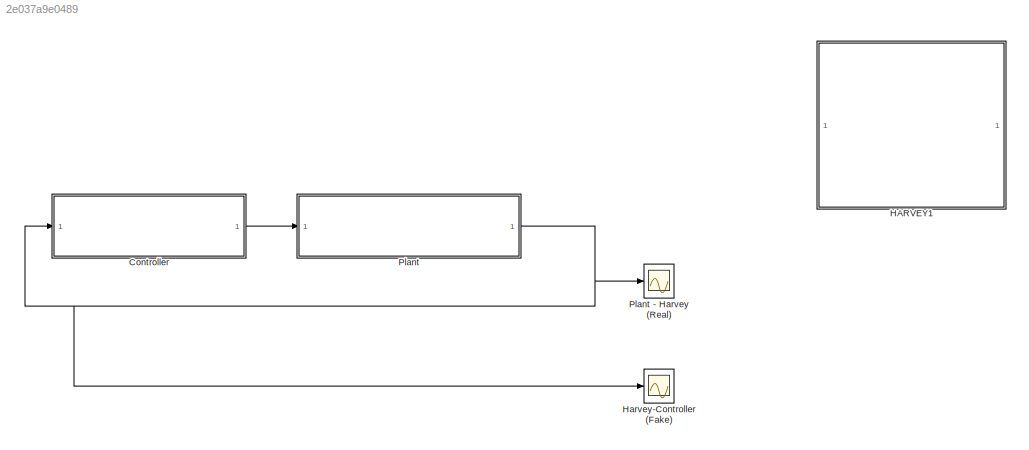
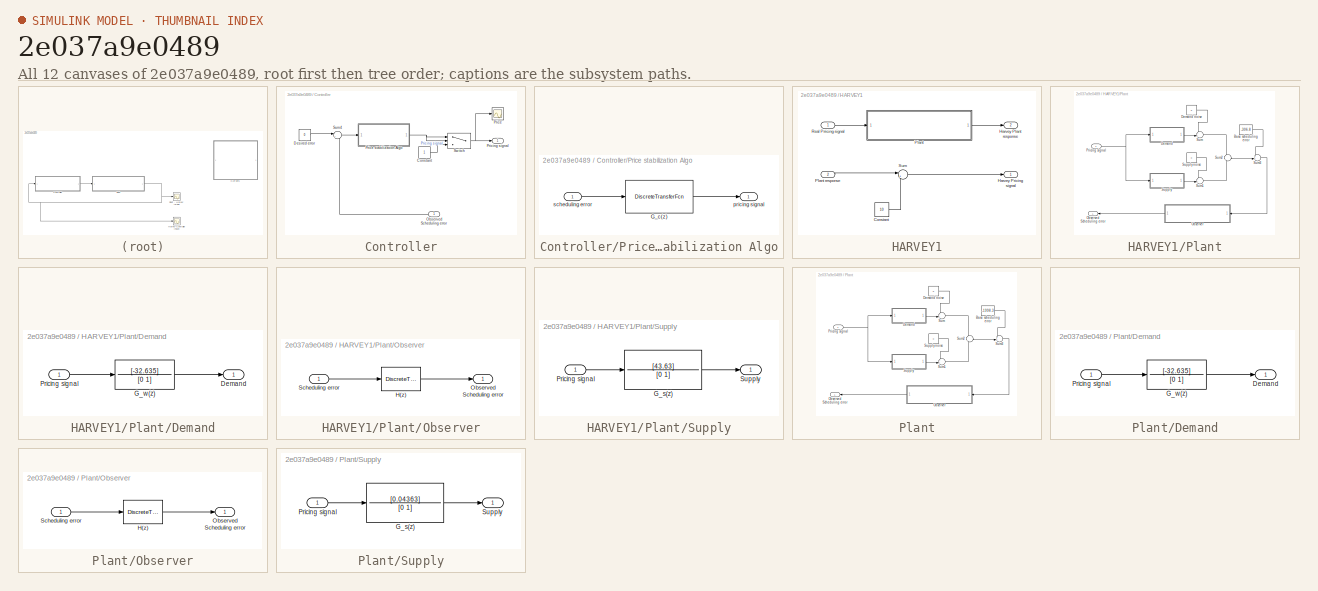
[diagram: thumbnail index - all 12 canvases of the model, root first then tree order]
MODEL slx_2e037a9e0489
KIND model
CONFIG AbsTol = auto
CONFIG EnableMultiTasking = off
CONFIG FixedStep = auto
CONFIG MaxStep = auto
CONFIG MinStep = auto
CONFIG RelTol = 1e-3
CONFIG SampleTimeConstraint = Unconstrained
CONFIG SolverName = VariableStepAuto
CONFIG StartTime = 0.0
CONFIG StopTime = 10
BLOCK [SubSystem] Controller
BLOCK [Constant] Controller/Constant
BLOCK [Constant] Controller/Desired error
  Value = 0
BLOCK [Inport] Controller/Observed Scheduling error
BLOCK [Scope] Controller/Price
  Floating = off
  NumInputPorts = 1
  ScopeSpecificationString = Simulink.scopes.TimeScopeBlockCfg('CurrentConfiguration', extmgr.ConfigurationSet(extmgr.Configuration('Core','General UI',true),extmgr.Configuration('Core','Source UI',true),extmgr.Configuration('Sources','WiredSimulink',true,'DataLoggingVariableName','ScopeData1'),extmgr.Configuration('Visuals','Time Domain',true,'SerializedDisplays',{struct('MinYLimReal','-6.51876','MaxYLimReal','68.66881','YLa...<+1697ch>
BLOCK [SubSystem] Controller/Price stabilization Algo
BLOCK [DiscreteTransferFcn] Controller/Price stabilization Algo/G_c(z)
  Denominator = [1 -1]
  InputPortMap = u0
  Numerator = [0.0245 0]
BLOCK [Outport] Controller/Price stabilization Algo/pricing signal
BLOCK [Inport] Controller/Price stabilization Algo/scheduling error
BLOCK [Outport] Controller/Pricing signal
BLOCK [Sum] Controller/Sum4
  Inputs = |+-
BLOCK [Switch] Controller/Switch
  Criteria = u2 > Threshold
  InputSameDT = off
  SaturateOnIntegerOverflow = off
  Threshold = 1
BLOCK [SubSystem] HARVEY1
  PortSchema = {"entries":[{"content":{"sides":[{"content":{"connectorIds":["In1","Out2"]},"type":"ConnectorPlacement.EquallySpacedRectSide","uuid":"463067e0-fab6-4de3-8785-e546c27fedfd"},{"content":{"connectorIds":["Out1","In2"],"side":"RIGHT"},"type":"ConnectorPlacement.EquallySpacedRectSide","uuid":"2f3028cb-c91f-413d-a400-7bf1e9b53c29"},{"content":{"connectorIds":[],"side":"TOP"},"type":"ConnectorPlacement.E...<+253ch>
BLOCK [Constant] HARVEY1/Constant
  Value = 10
BLOCK [Outport] HARVEY1/Harvey Plant response
  Port = 2
BLOCK [Outport] HARVEY1/Harvey Pricing signal
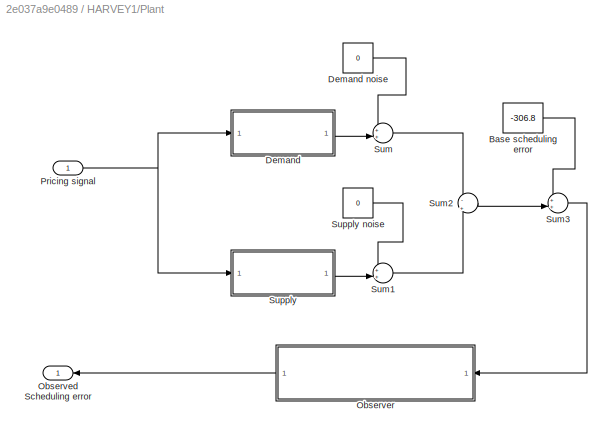
BLOCK [SubSystem] HARVEY1/Plant
BLOCK [Inport] HARVEY1/Plant response
  Port = 2
BLOCK [Constant] HARVEY1/Plant/Base scheduling error
  Value = -306.8
BLOCK [SubSystem] HARVEY1/Plant/Demand
BLOCK [Constant] HARVEY1/Plant/Demand noise
  Value = 0
BLOCK [Outport] HARVEY1/Plant/Demand/Demand
BLOCK [TransferFcn] HARVEY1/Plant/Demand/G_w(z)
  Denominator = [0 1]
  Numerator = [-32.635]
BLOCK [Inport] HARVEY1/Plant/Demand/Pricing signal
BLOCK [Outport] HARVEY1/Plant/Observed Scheduling error
BLOCK [SubSystem] HARVEY1/Plant/Observer
  NameLocation = top
BLOCK [DiscreteTransferFcn] HARVEY1/Plant/Observer/H(z)
  Denominator = [1 0]
  InputPortMap = u0
BLOCK [Outport] HARVEY1/Plant/Observer/Observed Scheduling error
BLOCK [Inport] HARVEY1/Plant/Observer/Scheduling error
BLOCK [Inport] HARVEY1/Plant/Pricing signal
BLOCK [Sum] HARVEY1/Plant/Sum
  Inputs = ++|
BLOCK [Sum] HARVEY1/Plant/Sum1
  Inputs = ++|
BLOCK [Sum] HARVEY1/Plant/Sum2
  Inputs = -|+
BLOCK [Sum] HARVEY1/Plant/Sum3
  Inputs = ++|
BLOCK [SubSystem] HARVEY1/Plant/Supply
BLOCK [Constant] HARVEY1/Plant/Supply noise
  Value = 0
BLOCK [TransferFcn] HARVEY1/Plant/Supply/G_s(z)
  Denominator = [0 1]
  Numerator = [43.63]
BLOCK [Inport] HARVEY1/Plant/Supply/Pricing signal
BLOCK [Outport] HARVEY1/Plant/Supply/Supply
BLOCK [Inport] HARVEY1/Real Prricing signal
BLOCK [Sum] HARVEY1/Sum
  Inputs = |++
BLOCK [Scope] Harvey-Controller (Fake)
  Floating = off
  NumInputPorts = 1
  ScopeSpecificationString = Simulink.scopes.TimeScopeBlockCfg('CurrentConfiguration', extmgr.ConfigurationSet(extmgr.Configuration('Core','General UI',true),extmgr.Configuration('Core','Source UI',true),extmgr.Configuration('Sources','WiredSimulink',true),extmgr.Configuration('Visuals','Time Domain',true,'SerializedDisplays',{struct('MinYLimReal','-2211.32404','MaxYLimReal','245.70267','YLabelReal','','MinYLimMag','  0.00000...<+1428ch>
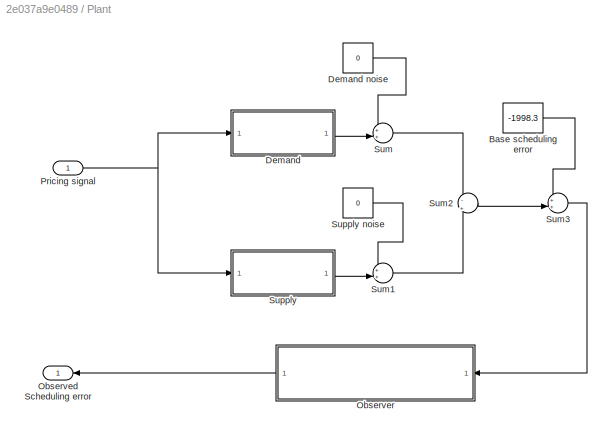
BLOCK [SubSystem] Plant
BLOCK [Scope] Plant - Harvey (Real)
  Floating = off
  NumInputPorts = 1
  ScopeSpecificationString = Simulink.scopes.TimeScopeBlockCfg('CurrentConfiguration', extmgr.ConfigurationSet(extmgr.Configuration('Core','General UI',true),extmgr.Configuration('Core','Source UI',true),extmgr.Configuration('Sources','WiredSimulink',true,'DataLoggingVariableName','ScopeData1'),extmgr.Configuration('Visuals','Time Domain',true,'SerializedDisplays',{struct('MinYLimReal','-2211.32404','MaxYLimReal','245.70267',...<+1466ch>
BLOCK [Constant] Plant/Base scheduling error
  Value = -1998.3
BLOCK [SubSystem] Plant/Demand
BLOCK [Constant] Plant/Demand noise
  Value = 0
BLOCK [Outport] Plant/Demand/Demand
BLOCK [TransferFcn] Plant/Demand/G_w(z)
  Denominator = [0 1]
  Numerator = [-32.635]
BLOCK [Inport] Plant/Demand/Pricing signal
BLOCK [Outport] Plant/Observed Scheduling error
BLOCK [SubSystem] Plant/Observer
  NameLocation = top
BLOCK [DiscreteTransferFcn] Plant/Observer/H(z)
  Denominator = [1 0]
  InputPortMap = u0
BLOCK [Outport] Plant/Observer/Observed Scheduling error
BLOCK [Inport] Plant/Observer/Scheduling error
BLOCK [Inport] Plant/Pricing signal
BLOCK [Sum] Plant/Sum
  Inputs = ++|
BLOCK [Sum] Plant/Sum1
  Inputs = ++|
BLOCK [Sum] Plant/Sum2
  Inputs = -|+
BLOCK [Sum] Plant/Sum3
  Inputs = ++|
BLOCK [SubSystem] Plant/Supply
BLOCK [Constant] Plant/Supply noise
  Value = 0
BLOCK [TransferFcn] Plant/Supply/G_s(z)
  Denominator = [0 1]
  Numerator = [0.04363]
BLOCK [Inport] Plant/Supply/Pricing signal
BLOCK [Outport] Plant/Supply/Supply
LINE Controller/Constant:1 -> Controller/Switch:3
LINE Controller/Desired error:1 -> Controller/Sum4:1
LINE Controller/Observed Scheduling error:1 -> Controller/Sum4:2
LINE Controller/Price stabilization Algo/G_c(z):1 -> Controller/Price stabilization Algo/pricing signal:1
LINE Controller/Price stabilization Algo/scheduling error:1 -> Controller/Price stabilization Algo/G_c(z):1
NET Controller/Price stabilization Algo:1 -> Controller/Switch:1, Controller/Switch:2
LINE Controller/Sum4:1 -> Controller/Price stabilization Algo:1
NET Controller/Switch:1 -> Controller/Price:1, Controller/Pricing signal:1
LINE Controller:1 -> Plant:1
LINE HARVEY1/Constant:1 -> HARVEY1/Sum:2
LINE HARVEY1/Plant response:1 -> HARVEY1/Sum:1
LINE HARVEY1/Plant/Base scheduling error:1 -> HARVEY1/Plant/Sum3:1
LINE HARVEY1/Plant/Demand noise:1 -> HARVEY1/Plant/Sum:1
LINE HARVEY1/Plant/Demand/G_w(z):1 -> HARVEY1/Plant/Demand/Demand:1
LINE HARVEY1/Plant/Demand/Pricing signal:1 -> HARVEY1/Plant/Demand/G_w(z):1
LINE HARVEY1/Plant/Demand:1 -> HARVEY1/Plant/Sum:2
LINE HARVEY1/Plant/Observer/H(z):1 -> HARVEY1/Plant/Observer/Observed Scheduling error:1
LINE HARVEY1/Plant/Observer/Scheduling error:1 -> HARVEY1/Plant/Observer/H(z):1
LINE HARVEY1/Plant/Observer:1 -> HARVEY1/Plant/Observed Scheduling error:1
NET HARVEY1/Plant/Pricing signal:1 -> HARVEY1/Plant/Demand:1, HARVEY1/Plant/Supply:1
LINE HARVEY1/Plant/Sum1:1 -> HARVEY1/Plant/Sum2:2
LINE HARVEY1/Plant/Sum2:1 -> HARVEY1/Plant/Sum3:2
LINE HARVEY1/Plant/Sum3:1 -> HARVEY1/Plant/Observer:1
LINE HARVEY1/Plant/Sum:1 -> HARVEY1/Plant/Sum2:1
LINE HARVEY1/Plant/Supply noise:1 -> HARVEY1/Plant/Sum1:1
LINE HARVEY1/Plant/Supply/G_s(z):1 -> HARVEY1/Plant/Supply/Supply:1
LINE HARVEY1/Plant/Supply/Pricing signal:1 -> HARVEY1/Plant/Supply/G_s(z):1
LINE HARVEY1/Plant/Supply:1 -> HARVEY1/Plant/Sum1:2
LINE HARVEY1/Plant:1 -> HARVEY1/Harvey Plant response:1
LINE HARVEY1/Real Prricing signal:1 -> HARVEY1/Plant:1
LINE HARVEY1/Sum:1 -> HARVEY1/Harvey Pricing signal:1
LINE Plant/Base scheduling error:1 -> Plant/Sum3:1
LINE Plant/Demand noise:1 -> Plant/Sum:1
LINE Plant/Demand/G_w(z):1 -> Plant/Demand/Demand:1
LINE Plant/Demand/Pricing signal:1 -> Plant/Demand/G_w(z):1
LINE Plant/Demand:1 -> Plant/Sum:2
LINE Plant/Observer/H(z):1 -> Plant/Observer/Observed Scheduling error:1
LINE Plant/Observer/Scheduling error:1 -> Plant/Observer/H(z):1
LINE Plant/Observer:1 -> Plant/Observed Scheduling error:1
NET Plant/Pricing signal:1 -> Plant/Demand:1, Plant/Supply:1
LINE Plant/Sum1:1 -> Plant/Sum2:2
LINE Plant/Sum2:1 -> Plant/Sum3:2
LINE Plant/Sum3:1 -> Plant/Observer:1
LINE Plant/Sum:1 -> Plant/Sum2:1
LINE Plant/Supply noise:1 -> Plant/Sum1:1
LINE Plant/Supply/G_s(z):1 -> Plant/Supply/Supply:1
LINE Plant/Supply/Pricing signal:1 -> Plant/Supply/G_s(z):1
LINE Plant/Supply:1 -> Plant/Sum1:2
NET Plant:1 -> Controller:1, Harvey-Controller (Fake):1, Plant - Harvey (Real):1
note: NET lines group one-source signal fan-out (src -> all destinations, sorted); 1:1 wires keep LINE
